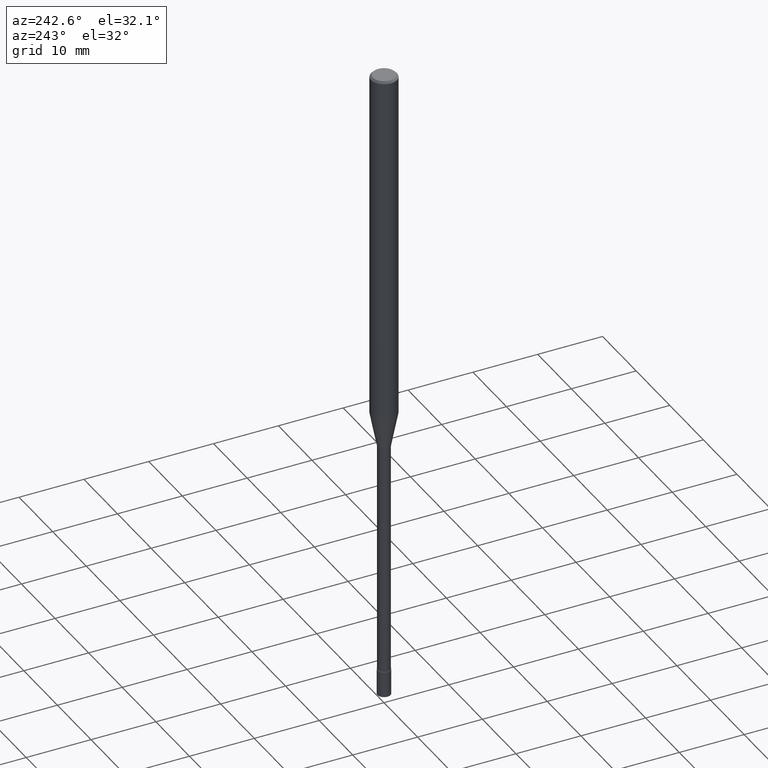
[diagram: clean part render]
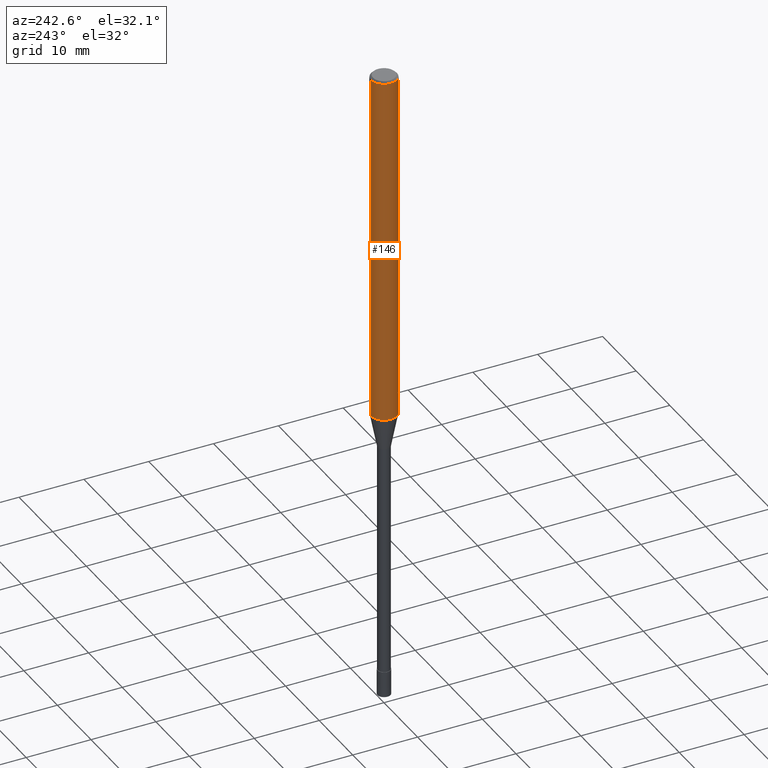
[diagram: same view with one face highlighted and labeled with its STEP entity id]
A machine part, auxiliary view. The second image highlights one B-rep face of the part: STEP entity #146.
In plain terms, the highlighted cylindrical surface (edge-blend (fillet) strip) has radius 2 mm, axis along (-0, -0, 1).
Its self-contained STEP definition (entity closure, byte-faithful):
#92=EDGE_CURVE('',#98,#154,#229,.T.);
#98=VERTEX_POINT('',#236);
#124=EDGE_CURVE('',#196,#98,#266,.T.);
#146=ADVANCED_FACE('',(#291),#292,.T.);
#154=VERTEX_POINT('',#301);
#164=VERTEX_POINT('',#313);
#196=VERTEX_POINT('',#348);
#206=EDGE_CURVE('',#164,#196,#359,.T.);
#208=EDGE_CURVE('',#164,#154,#361,.T.);
#229=LINE('',#375,#376);
#236=CARTESIAN_POINT('',(0.0,2.0,-0.299999999999997));
#266=CIRCLE('',#425,2.0);
#291=FACE_OUTER_BOUND('',#454,.T.);
#292=CYLINDRICAL_SURFACE('',#455,2.0);
#301=CARTESIAN_POINT('',(0.0,2.0,-54.598));
#313=CARTESIAN_POINT('',(2.44921270764475E-016,-2.0,-54.598));
#348=CARTESIAN_POINT('',(2.44921270764475E-016,-2.0,-0.299999999999997));
#359=LINE('',#536,#537);
#361=CIRCLE('',#540,2.0);
#375=CARTESIAN_POINT('',(-2.44921270764475E-016,2.0,-27.449));
#376=VECTOR('',#542,1.0);
#425=AXIS2_PLACEMENT_3D('',#590,#591,#592);
#454=EDGE_LOOP('',(#627,#628,#629,#630));
#455=AXIS2_PLACEMENT_3D('',#631,#632,#633);
#536=CARTESIAN_POINT('',(2.44921270764475E-016,-2.0,-27.449));
#537=VECTOR('',#710,1.0);
#540=AXIS2_PLACEMENT_3D('',#711,#712,#713);
#542=DIRECTION('',(0.0,0.0,-1.0));
#590=CARTESIAN_POINT('',(0.0,0.0,-0.299999999999997));
#591=DIRECTION('',(0.0,0.0,-1.0));
#592=DIRECTION('',(0.0,1.0,0.0));
#627=ORIENTED_EDGE('',*,*,#92,.T.);
#628=ORIENTED_EDGE('',*,*,#208,.F.);
#629=ORIENTED_EDGE('',*,*,#206,.T.);
#630=ORIENTED_EDGE('',*,*,#124,.T.);
#631=CARTESIAN_POINT('',(0.0,0.0,-27.449));
#632=DIRECTION('',(-0.0,-0.0,1.0));
#633=DIRECTION('',(0.0,1.0,0.0));
#710=DIRECTION('',(-0.0,-0.0,1.0));
#711=CARTESIAN_POINT('',(0.0,0.0,-54.598));
#712=DIRECTION('',(0.0,0.0,-1.0));
#713=DIRECTION('',(0.0,1.0,0.0));